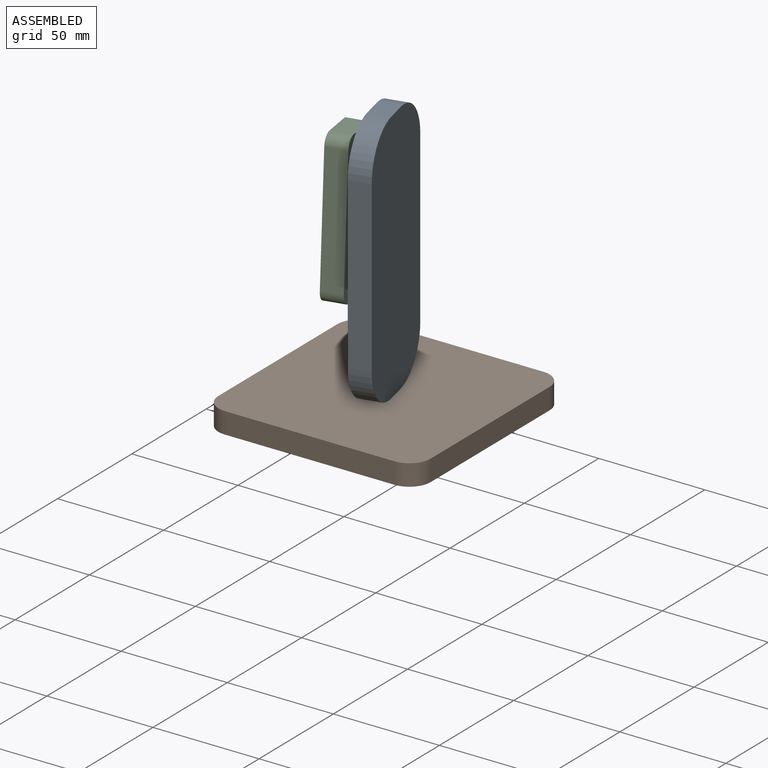
[diagram: assembled view]
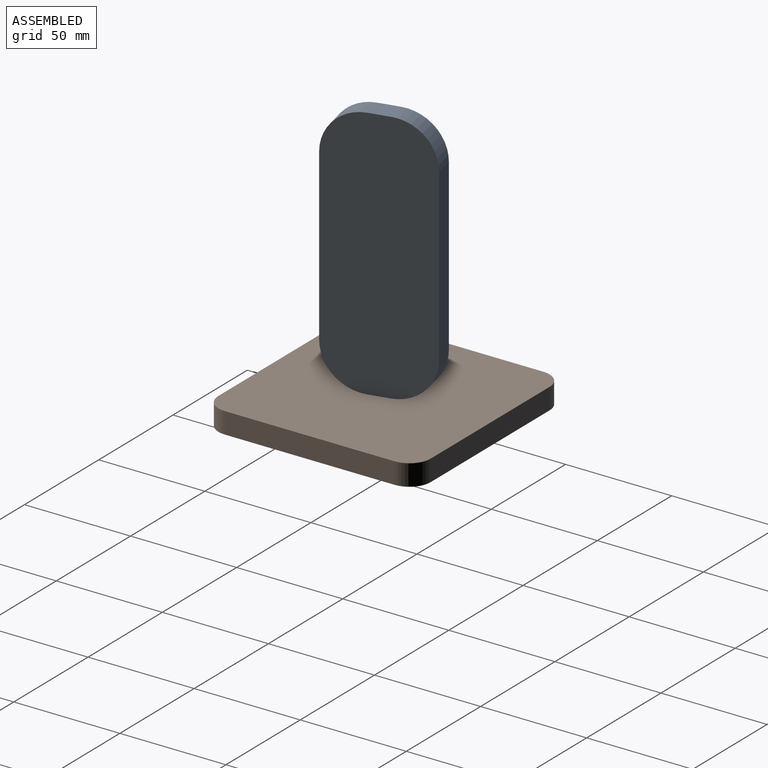
[diagram: assembled view, second angle]
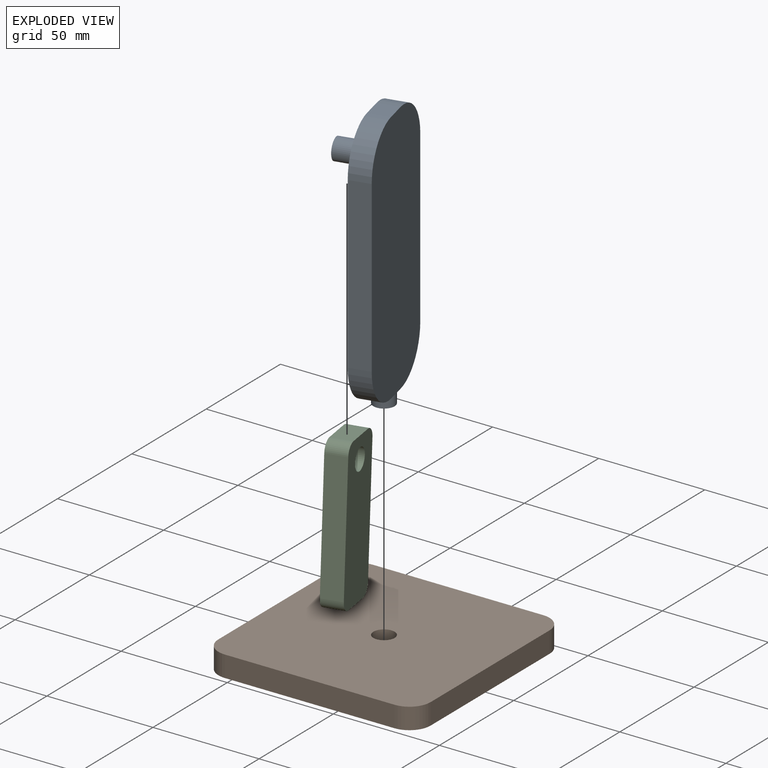
[diagram: exploded view]
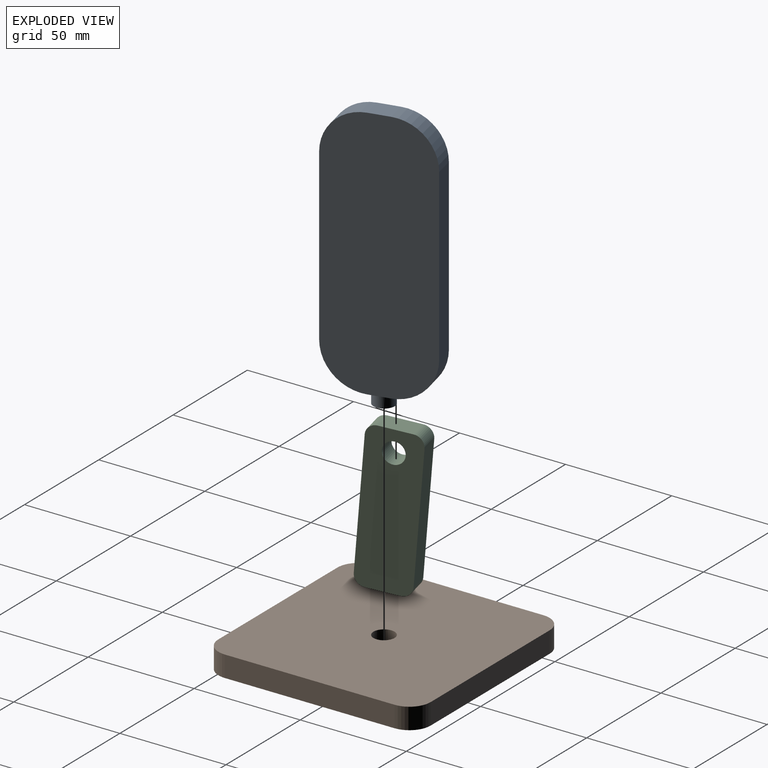
[diagram: exploded view, second angle]
ASSEMBLY  parts=3 mates=2
PART A: 17 faces, bbox 50x25x125 mm
  f0: plane 5x5mm, normal (0,0,-1), area 5.4mm2, adj f3,f11,f14
  f1: plane 5x5mm, normal (0,0,-1), area 5.4mm2, adj f5,f11,f13
  f2: plane 5x5mm, normal (0,0,-1), area 5.4mm2, adj f5,f11,f14
  f3: plane 120x50mm, normal (0,-1,0), area 5578.1mm2, adj f0,f4,f6,f7,f8,f9,f13,f14
  f4: plane 80x10mm, normal (1,0,0), area 800mm2, adj f3,f5,f13,f15
  f5: plane 120x50mm, normal (0,1,0), area 5656.6mm2, adj f1,f2,f4,f6,f7,f13,f14,f15
  f6: plane 80x10mm, normal (-1,0,0), area 800mm2, adj f3,f5,f14,f16
  f7: plane 10x10mm, normal (0,0,1), area 100mm2, adj f3,f5,f15,f16
  f8: plane 5x5mm, normal (0,0,-1), area 5.4mm2, adj f3,f11,f13
  f9: cylinder r=5mm len=15mm, axis (0,1,0), area 471.2mm2, adj f3,f10
  f10: plane 10x10mm, normal (0,-1,0), area 78.5mm2, adj f9
  f11: cylinder r=5mm len=10mm, axis (0,0,1), area 157.1mm2, adj f0,f1,f2,f8,f12
  f12: plane 10x10mm, normal (0,0,-1), area 78.5mm2, adj f11
  f13: cylinder r=20mm len=20mm, axis (0,1,0), area 314.2mm2, adj f1,f3,f4,f5,f8
  f14: cylinder r=20mm len=20mm, axis (0,-1,0), area 314.2mm2, adj f0,f2,f3,f5,f6
  f15: cylinder r=20mm len=20mm, axis (0,-1,0), area 314.2mm2, adj f3,f4,f5,f7
  f16: cylinder r=20mm len=20mm, axis (0,1,0), area 314.2mm2, adj f3,f5,f6,f7
PART B: 11 faces, bbox 100x100x10 mm
  f0: plane 80x10mm, normal (0,-1,0), area 800mm2, adj f4,f5,f6,f9
  f1: plane 80x10mm, normal (1,0,0), area 800mm2, adj f4,f5,f6,f7
  f2: plane 80x10mm, normal (0,1,0), area 800mm2, adj f4,f5,f7,f8
  f3: plane 80x10mm, normal (-1,0,0), area 800mm2, adj f4,f5,f8,f9
  f4: plane 100x100mm, normal (0,0,1), area 9835.6mm2, adj f0,f1,f2,f3,f6,f7,f8,f9
  f5: plane 100x100mm, normal (0,0,-1), area 9835.6mm2, adj f0,f1,f2,f3,f6,f7,f8,f9
  f6: cylinder r=10mm len=10mm, axis (0,0,1), area 157.1mm2, adj f0,f1,f4,f5
  f7: cylinder r=10mm len=10mm, axis (0,0,-1), area 157.1mm2, adj f1,f2,f4,f5
  f8: cylinder r=10mm len=10mm, axis (0,0,1), area 157.1mm2, adj f2,f3,f4,f5
  f9: cylinder r=10mm len=10mm, axis (0,0,-1), area 157.1mm2, adj f0,f3,f4,f5
  f10: cylinder r=5mm len=10mm, axis (0,0,-1), area 314.2mm2, adj f4,f5
PART C: 11 faces, bbox 70x25x10 mm
  f0: plane 15x10mm, normal (1,0,0), area 150mm2, adj f5,f6,f7,f10
  f1: plane 60x10mm, normal (0,1,0), area 600mm2, adj f5,f6,f7,f8
  f2: plane 15x10mm, normal (-1,0,0), area 150mm2, adj f5,f6,f8,f9
  f3: plane 60x10mm, normal (0,-1,0), area 600mm2, adj f5,f6,f9,f10
  f4: cylinder r=5mm len=10mm, axis (0,0,-1), area 314.2mm2, adj f5,f6
  f5: plane 70x25mm, normal (0,0,1), area 1650mm2, adj f0,f1,f2,f3,f4,f7,f8,f9
  f6: plane 70x25mm, normal (0,0,-1), area 1650mm2, adj f0,f1,f2,f3,f4,f7,f8,f9
  f7: cylinder r=5mm len=10mm, axis (0,0,1), area 78.5mm2, adj f0,f1,f5,f6
  f8: cylinder r=5mm len=10mm, axis (0,0,-1), area 78.5mm2, adj f1,f2,f5,f6
  f9: cylinder r=5mm len=10mm, axis (0,0,1), area 78.5mm2, adj f2,f3,f5,f6
  f10: cylinder r=5mm len=10mm, axis (0,0,-1), area 78.5mm2, adj f0,f3,f5,f6
PLACE A rot(axis=(0,0,-1),77deg) t=(-9.57,-2.21,9.97)mm
PLACE B t=(-9.57,-2.21,-0.03)mm fixed
PLACE C rot(axis=(0.07,-0.99,0.15),91.3deg) t=(-18.89,-6.31,85.05)mm
MATE revolute C.f4 <-> A.f9  axis (-0.97,-0.22,0) through (-29.06,-6.7,109.97)mm
MATE revolute A.f11 <-> B.f10  axis (0,0,1) through (-9.57,-2.21,9.97)mm
